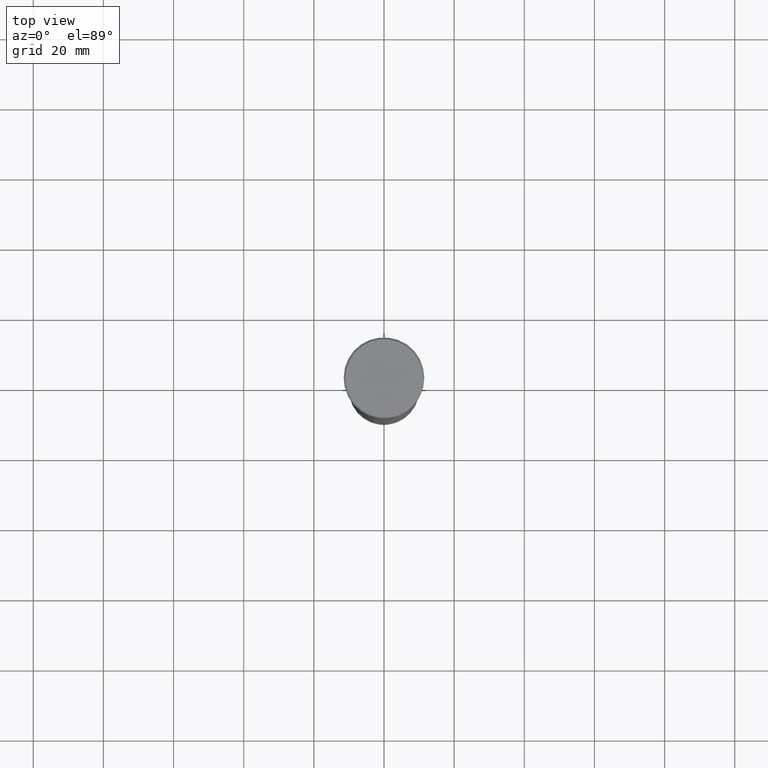
[diagram: clean part render]
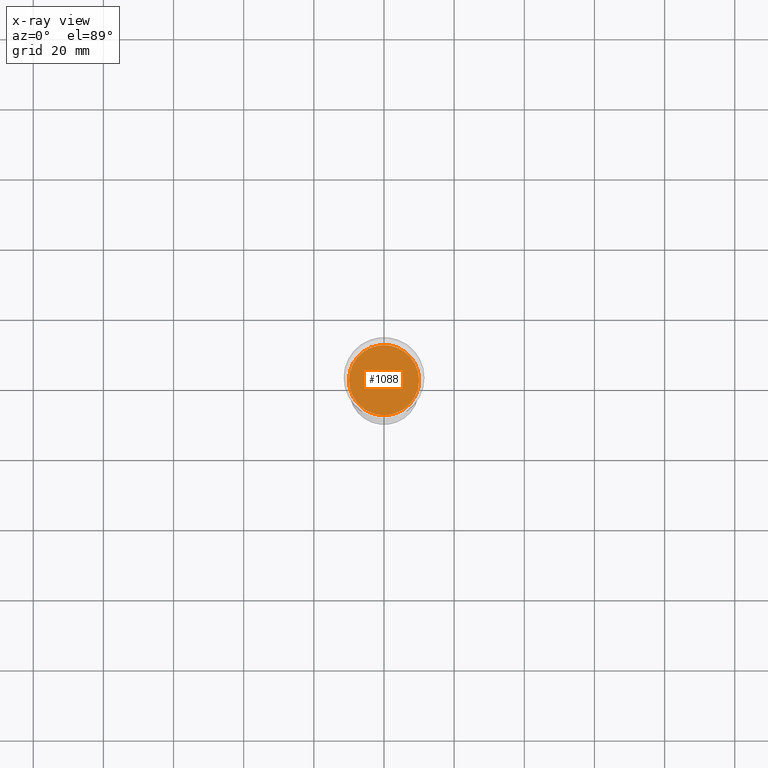
[diagram: x-ray — body ghosted, one internal face saturated and labeled with its STEP entity id]
A machine part, top view, then the same camera in x-ray: the body is ghosted and one INTERNAL B-rep face — a face not visible from any outside direction — is saturated and labeled: STEP entity #1088.
In plain terms, the highlighted planar face has unit normal (0, 0, -1).
Its self-contained STEP definition (entity closure, byte-faithful):
#2 = VERTEX_POINT ( 'NONE', #704 ) ;
#150 = PLANE ( 'NONE',  #692 ) ;
#162 = VERTEX_POINT ( 'NONE', #745 ) ;
#228 = DIRECTION ( 'NONE',  ( -0.000000000000000000, -0.000000000000000000, 1.000000000000000000 ) ) ;
#264 = DIRECTION ( 'NONE',  ( -0.000000000000000000, -0.000000000000000000, 1.000000000000000000 ) ) ;
#322 = DIRECTION ( 'NONE',  ( 0.000000000000000000, 0.000000000000000000, -1.000000000000000000 ) ) ;
#335 = CARTESIAN_POINT ( 'NONE',  ( 0.000000000000000000, 0.000000000000000000, -41.99999999999999289 ) ) ;
#387 = AXIS2_PLACEMENT_3D ( 'NONE', #335, #228, #862 ) ;
#415 = DIRECTION ( 'NONE',  ( 1.000000000000000000, 0.000000000000000000, 0.000000000000000000 ) ) ;
#471 = FACE_OUTER_BOUND ( 'NONE', #790, .T. ) ;
#490 = CARTESIAN_POINT ( 'NONE',  ( 0.000000000000000000, 0.000000000000000000, -41.99999999999999289 ) ) ;
#492 = ORIENTED_EDGE ( 'NONE', *, *, #1143, .T. ) ;
#507 = CARTESIAN_POINT ( 'NONE',  ( 0.000000000000000000, 0.000000000000000000, -41.99999999999999289 ) ) ;
#560 = AXIS2_PLACEMENT_3D ( 'NONE', #507, #264, #415 ) ;
#641 = CIRCLE ( 'NONE', #387, 10.00000000000000000 ) ;
#668 = CIRCLE ( 'NONE', #560, 10.00000000000000000 ) ;
#692 = AXIS2_PLACEMENT_3D ( 'NONE', #490, #322, #1102 ) ;
#704 = CARTESIAN_POINT ( 'NONE',  ( 10.00000000000000000, 0.000000000000000000, -41.99999999999999289 ) ) ;
#745 = CARTESIAN_POINT ( 'NONE',  ( -10.00000000000000178, 1.224646799147353454E-15, -41.99999999999999289 ) ) ;
#790 = EDGE_LOOP ( 'NONE', ( #850, #492 ) ) ;
#850 = ORIENTED_EDGE ( 'NONE', *, *, #898, .T. ) ;
#862 = DIRECTION ( 'NONE',  ( 1.000000000000000000, 0.000000000000000000, 0.000000000000000000 ) ) ;
#898 = EDGE_CURVE ( 'NONE', #2, #162, #641, .T. ) ;
#1088 = ADVANCED_FACE ( 'NONE', ( #471 ), #150, .F. ) ;
#1102 = DIRECTION ( 'NONE',  ( -1.000000000000000000, 0.000000000000000000, -0.000000000000000000 ) ) ;
#1143 = EDGE_CURVE ( 'NONE', #162, #2, #668, .T. ) ;